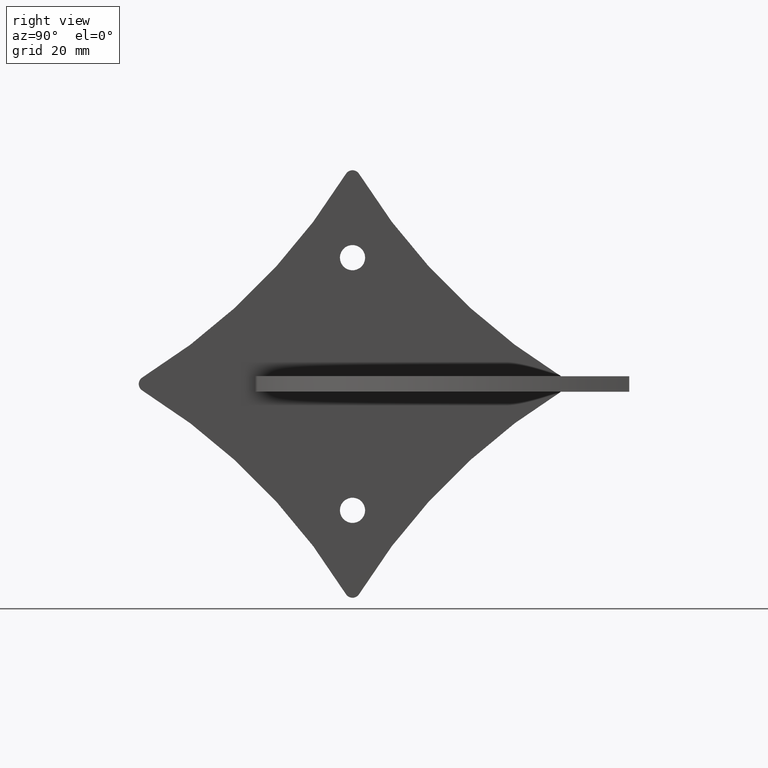
[diagram: clean part render]
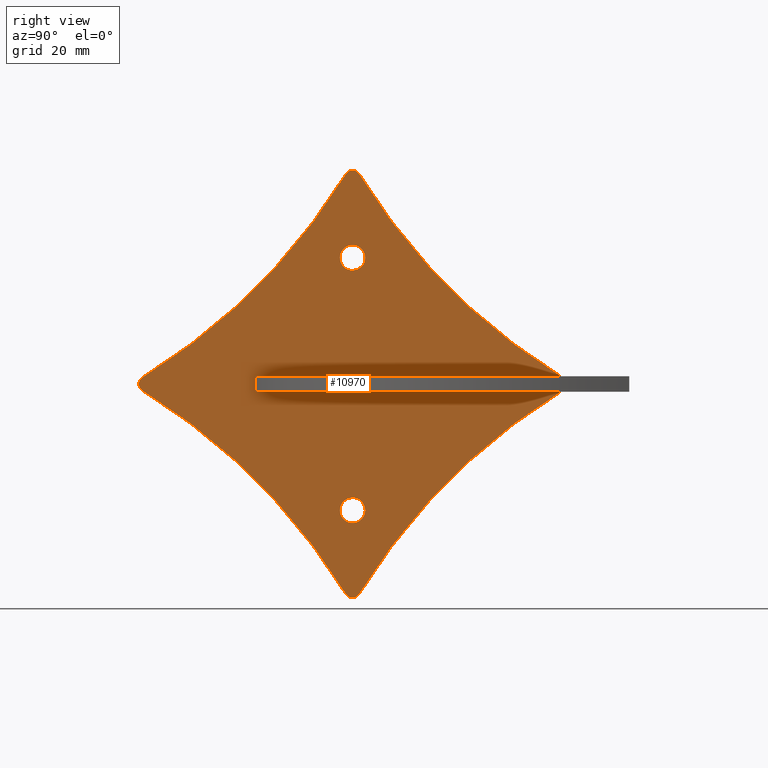
[diagram: same view with one face highlighted and labeled with its STEP entity id]
A machine part, right view. The second image highlights one B-rep face of the part: STEP entity #10970.
In plain terms, the highlighted planar face has unit normal (-1, 0, 0).
Its self-contained STEP definition (entity closure, byte-faithful):
#7 = CIRCLE ( 'NONE', #10721, 1.999999999999988010 ) ;
#24 = CARTESIAN_POINT ( 'NONE',  ( 1.998401444325281773E-12, 24.99999999999996803, -2.000000000000000000 ) ) ;
#71 = AXIS2_PLACEMENT_3D ( 'NONE', #9850, #10944, #13010 ) ;
#103 = CIRCLE ( 'NONE', #626, 3.250000000000000888 ) ;
#216 = ORIENTED_EDGE ( 'NONE', *, *, #7597, .T. ) ;
#340 = CIRCLE ( 'NONE', #12933, 3.250000000000000444 ) ;
#371 = VERTEX_POINT ( 'NONE', #3362 ) ;
#452 = CARTESIAN_POINT ( 'NONE',  ( 1.361320262357661371E-13, 1.703011507301621652, 54.04869051964736570 ) ) ;
#564 = VERTEX_POINT ( 'NONE', #9453 ) ;
#626 = AXIS2_PLACEMENT_3D ( 'NONE', #13065, #9814, #10858 ) ;
#666 = VERTEX_POINT ( 'NONE', #12627 ) ;
#815 = CARTESIAN_POINT ( 'NONE',  ( 1.998401444325281773E-12, 24.99999999999996803, 2.000000000000000000 ) ) ;
#844 = DIRECTION ( 'NONE',  ( -7.993605777301123305E-14, -1.000000000000000000, 0.000000000000000000 ) ) ;
#972 = LINE ( 'NONE', #1583, #5935 ) ;
#1106 = DIRECTION ( 'NONE',  ( 7.993605777301129615E-14, 1.000000000000000000, 0.000000000000000000 ) ) ;
#1193 = DIRECTION ( 'NONE',  ( 1.000000000000000000, -7.993605777301128353E-14, -0.000000000000000000 ) ) ;
#1250 = AXIS2_PLACEMENT_3D ( 'NONE', #7511, #1193, #1106 ) ;
#1334 = LINE ( 'NONE', #13193, #12055 ) ;
#1351 = PLANE ( 'NONE',  #5630 ) ;
#1398 = CARTESIAN_POINT ( 'NONE',  ( 4.236611061969595743E-12, 52.99999999999996447, 6.228573115277476685E-15 ) ) ;
#1568 = EDGE_LOOP ( 'NONE', ( #216, #5166 ) ) ;
#1583 = CARTESIAN_POINT ( 'NONE',  ( 2.220446049250313081E-13, -24.99999999999879918, 2.000000000000000000 ) ) ;
#1716 = DIRECTION ( 'NONE',  ( 1.000000000000000000, -7.993605777301128353E-14, -0.000000000000000000 ) ) ;
#1752 = EDGE_CURVE ( 'NONE', #6656, #5390, #3017, .T. ) ;
#1769 = VERTEX_POINT ( 'NONE', #13455 ) ;
#1807 = DIRECTION ( 'NONE',  ( -7.993605777301127091E-14, -1.000000000000000000, 0.000000000000000000 ) ) ;
#1852 = DIRECTION ( 'NONE',  ( -1.000000000000000000, 7.993605777301128353E-14, 0.000000000000000000 ) ) ;
#1877 = CARTESIAN_POINT ( 'NONE',  ( 1.102669412509716151E-11, 137.9439320914333393, 137.9439320914332825 ) ) ;
#1895 = CARTESIAN_POINT ( 'NONE',  ( -2.597921877622872363E-13, -3.250000000000006661, 32.50000000000000711 ) ) ;
#1917 = ORIENTED_EDGE ( 'NONE', *, *, #8962, .F. ) ;
#1933 = ORIENTED_EDGE ( 'NONE', *, *, #6199, .F. ) ;
#2263 = EDGE_LOOP ( 'NONE', ( #9836, #5785, #2656, #13405 ) ) ;
#2267 = VERTEX_POINT ( 'NONE', #8106 ) ;
#2300 = CARTESIAN_POINT ( 'NONE',  ( 2.597921877622855702E-13, 3.249999999999986233, -32.49999999999999289 ) ) ;
#2363 = CARTESIAN_POINT ( 'NONE',  ( -7.631652593533379434E-12, -95.47196604571666967, 68.97196604571664125 ) ) ;
#2495 = AXIS2_PLACEMENT_3D ( 'NONE', #11159, #3739, #6737 ) ;
#2496 = VECTOR ( 'NONE', #4426, 1000.000000000000000 ) ;
#2533 = EDGE_CURVE ( 'NONE', #666, #7802, #7329, .T. ) ;
#2591 = DIRECTION ( 'NONE',  ( 3.552713678800588651E-14, 1.000000000000000000, 0.000000000000000000 ) ) ;
#2595 = CARTESIAN_POINT ( 'NONE',  ( -2.597921877622878421E-13, -3.250000000000014211, -32.49999999999999289 ) ) ;
#2656 = ORIENTED_EDGE ( 'NONE', *, *, #3500, .F. ) ;
#2677 = DIRECTION ( 'NONE',  ( -7.993605777301127091E-14, -1.000000000000000000, 0.000000000000000000 ) ) ;
#2916 = DIRECTION ( 'NONE',  ( -7.993605777301128353E-14, -1.000000000000000000, 0.000000000000000000 ) ) ;
#3017 = CIRCLE ( 'NONE', #9191, 160.0000000000000284 ) ;
#3031 = CARTESIAN_POINT ( 'NONE',  ( 4.320439247934132664E-12, 54.04869051964728044, 1.703011507301644301 ) ) ;
#3268 = CIRCLE ( 'NONE', #9842, 1.999999999999992228 ) ;
#3343 = VERTEX_POINT ( 'NONE', #12800 ) ;
#3350 = EDGE_CURVE ( 'NONE', #5017, #2267, #103, .T. ) ;
#3362 = CARTESIAN_POINT ( 'NONE',  ( -1.998139615876600116E-12, -24.99999999999961986, 2.000000000000000000 ) ) ;
#3500 = EDGE_CURVE ( 'NONE', #11026, #7802, #1334, .T. ) ;
#3546 = DIRECTION ( 'NONE',  ( -1.000000000000000000, 7.993605777301128353E-14, 0.000000000000000000 ) ) ;
#3641 = CIRCLE ( 'NONE', #6390, 1.999999999999988010 ) ;
#3739 = DIRECTION ( 'NONE',  ( -1.000000000000000000, 7.993605777301128353E-14, 0.000000000000000000 ) ) ;
#3878 = EDGE_CURVE ( 'NONE', #12539, #8377, #3641, .T. ) ;
#3899 = CARTESIAN_POINT ( 'NONE',  ( -4.320439247934135088E-12, -54.04869051964730886, -1.703011507301593896 ) ) ;
#3976 = DIRECTION ( 'NONE',  ( -1.000000000000000000, 7.993605777301128353E-14, 0.000000000000000000 ) ) ;
#4426 = DIRECTION ( 'NONE',  ( 3.552713678800588651E-14, 1.000000000000000000, 0.000000000000000000 ) ) ;
#4624 = AXIS2_PLACEMENT_3D ( 'NONE', #13376, #10312, #2916 ) ;
#4678 = VERTEX_POINT ( 'NONE', #2595 ) ;
#4762 = DIRECTION ( 'NONE',  ( 1.000000000000000000, -7.993605777301128353E-14, -0.000000000000000000 ) ) ;
#4992 = CARTESIAN_POINT ( 'NONE',  ( -1.109335647967048031E-27, -1.387778780781445676E-14, -32.49999999999999289 ) ) ;
#5017 = VERTEX_POINT ( 'NONE', #1895 ) ;
#5083 = EDGE_CURVE ( 'NONE', #3343, #7432, #8588, .T. ) ;
#5166 = ORIENTED_EDGE ( 'NONE', *, *, #3350, .T. ) ;
#5185 = ORIENTED_EDGE ( 'NONE', *, *, #12350, .F. ) ;
#5390 = VERTEX_POINT ( 'NONE', #3899 ) ;
#5605 = DIRECTION ( 'NONE',  ( 7.993605777301123305E-14, 1.000000000000000000, 0.000000000000000000 ) ) ;
#5630 = AXIS2_PLACEMENT_3D ( 'NONE', #2363, #8736, #10938 ) ;
#5663 = ORIENTED_EDGE ( 'NONE', *, *, #5828, .F. ) ;
#5695 = DIRECTION ( 'NONE',  ( -1.000000000000000000, 7.993605777301128353E-14, 0.000000000000000000 ) ) ;
#5785 = ORIENTED_EDGE ( 'NONE', *, *, #2533, .T. ) ;
#5828 = EDGE_CURVE ( 'NONE', #7432, #6656, #3268, .T. ) ;
#5935 = VECTOR ( 'NONE', #11131, 1000.000000000000000 ) ;
#6109 = DIRECTION ( 'NONE',  ( -1.000000000000000000, 7.993605777301128353E-14, 0.000000000000000000 ) ) ;
#6174 = CARTESIAN_POINT ( 'NONE',  ( -1.361320262357708576E-13, -1.703011507301677163, -54.04869051964735149 ) ) ;
#6199 = EDGE_CURVE ( 'NONE', #564, #6596, #9388, .T. ) ;
#6307 = CARTESIAN_POINT ( 'NONE',  ( 1.361320262357657079E-13, 1.703011507301624983, -54.04869051964732307 ) ) ;
#6390 = AXIS2_PLACEMENT_3D ( 'NONE', #1398, #5695, #5605 ) ;
#6396 = ORIENTED_EDGE ( 'NONE', *, *, #3878, .F. ) ;
#6420 = ORIENTED_EDGE ( 'NONE', *, *, #11303, .T. ) ;
#6596 = VERTEX_POINT ( 'NONE', #452 ) ;
#6656 = VERTEX_POINT ( 'NONE', #6174 ) ;
#6737 = DIRECTION ( 'NONE',  ( -7.993605777301128353E-14, -1.000000000000000000, 0.000000000000000000 ) ) ;
#6764 = ORIENTED_EDGE ( 'NONE', *, *, #5083, .F. ) ;
#6836 = CARTESIAN_POINT ( 'NONE',  ( -1.102669412509716636E-11, -137.9439320914333962, -137.9439320914332257 ) ) ;
#6942 = FACE_BOUND ( 'NONE', #7291, .T. ) ;
#7033 = CARTESIAN_POINT ( 'NONE',  ( -1.693206494350487913E-27, -2.118201149171711369E-14, -53.00000000000001421 ) ) ;
#7250 = CIRCLE ( 'NONE', #12165, 160.0000000000000000 ) ;
#7291 = EDGE_LOOP ( 'NONE', ( #6420, #10848 ) ) ;
#7298 = AXIS2_PLACEMENT_3D ( 'NONE', #4992, #1852, #12446 ) ;
#7329 = LINE ( 'NONE', #815, #10794 ) ;
#7432 = VERTEX_POINT ( 'NONE', #6307 ) ;
#7511 = CARTESIAN_POINT ( 'NONE',  ( 1.102669412509715990E-11, 137.9439320914333109, -137.9439320914332825 ) ) ;
#7531 = ORIENTED_EDGE ( 'NONE', *, *, #9723, .F. ) ;
#7597 = EDGE_CURVE ( 'NONE', #2267, #5017, #8224, .T. ) ;
#7802 = VERTEX_POINT ( 'NONE', #24 ) ;
#7890 = CARTESIAN_POINT ( 'NONE',  ( 4.396483177515616669E-12, 54.99999999999995026, 6.228573115277476685E-15 ) ) ;
#7974 = CIRCLE ( 'NONE', #7298, 3.250000000000000444 ) ;
#8106 = CARTESIAN_POINT ( 'NONE',  ( 2.597921877622862266E-13, 3.249999999999994671, 32.50000000000000711 ) ) ;
#8112 = DIRECTION ( 'NONE',  ( 7.993605777301128353E-14, 1.000000000000000000, 0.000000000000000000 ) ) ;
#8224 = CIRCLE ( 'NONE', #4624, 3.250000000000000888 ) ;
#8377 = VERTEX_POINT ( 'NONE', #7890 ) ;
#8588 = CIRCLE ( 'NONE', #1250, 160.0000000000000000 ) ;
#8736 = DIRECTION ( 'NONE',  ( -1.000000000000000000, 7.993605777301128353E-14, 0.000000000000000000 ) ) ;
#8832 = CARTESIAN_POINT ( 'NONE',  ( -1.998401444325186453E-12, -24.99999999999879918, -2.000000000000000000 ) ) ;
#8903 = CIRCLE ( 'NONE', #71, 1.999999999999988010 ) ;
#8962 = EDGE_CURVE ( 'NONE', #5390, #1769, #7, .T. ) ;
#9191 = AXIS2_PLACEMENT_3D ( 'NONE', #6836, #4762, #2677 ) ;
#9210 = DIRECTION ( 'NONE',  ( -0.000000000000000000, -0.000000000000000000, -1.000000000000000000 ) ) ;
#9252 = EDGE_CURVE ( 'NONE', #371, #666, #13551, .T. ) ;
#9388 = CIRCLE ( 'NONE', #2495, 2.000000000000013767 ) ;
#9444 = EDGE_CURVE ( 'NONE', #4678, #12449, #7974, .T. ) ;
#9453 = CARTESIAN_POINT ( 'NONE',  ( -1.361320262357675507E-13, -1.703011507301648075, 54.04869051964733728 ) ) ;
#9591 = FACE_OUTER_BOUND ( 'NONE', #11037, .T. ) ;
#9685 = CARTESIAN_POINT ( 'NONE',  ( 1.110223024625135740E-12, -3.944304526105082560E-26, 2.000000000000000000 ) ) ;
#9723 = EDGE_CURVE ( 'NONE', #6596, #12539, #11910, .T. ) ;
#9745 = FACE_BOUND ( 'NONE', #1568, .T. ) ;
#9814 = DIRECTION ( 'NONE',  ( -1.000000000000000000, 7.993605777301128353E-14, 0.000000000000000000 ) ) ;
#9836 = ORIENTED_EDGE ( 'NONE', *, *, #9252, .T. ) ;
#9842 = AXIS2_PLACEMENT_3D ( 'NONE', #7033, #3976, #8112 ) ;
#9850 = CARTESIAN_POINT ( 'NONE',  ( 4.236611061969595743E-12, 52.99999999999996447, 6.228573115277476685E-15 ) ) ;
#10301 = CARTESIAN_POINT ( 'NONE',  ( -1.102669412509716313E-11, -137.9439320914333678, 137.9439320914332825 ) ) ;
#10312 = DIRECTION ( 'NONE',  ( -1.000000000000000000, 7.993605777301128353E-14, 0.000000000000000000 ) ) ;
#10360 = DIRECTION ( 'NONE',  ( 7.993605777301129615E-14, 1.000000000000000000, 0.000000000000000000 ) ) ;
#10721 = AXIS2_PLACEMENT_3D ( 'NONE', #12417, #6109, #844 ) ;
#10794 = VECTOR ( 'NONE', #9210, 1000.000000000000000 ) ;
#10848 = ORIENTED_EDGE ( 'NONE', *, *, #9444, .T. ) ;
#10858 = DIRECTION ( 'NONE',  ( -7.993605777301128353E-14, -1.000000000000000000, 0.000000000000000000 ) ) ;
#10916 = DIRECTION ( 'NONE',  ( -7.993605777301129615E-14, -1.000000000000000000, 0.000000000000000000 ) ) ;
#10938 = DIRECTION ( 'NONE',  ( -7.993605777301128353E-14, -1.000000000000000000, 0.000000000000000000 ) ) ;
#10944 = DIRECTION ( 'NONE',  ( -1.000000000000000000, 7.993605777301128353E-14, 0.000000000000000000 ) ) ;
#10970 = ADVANCED_FACE ( 'NONE', ( #12870, #9591, #9745, #6942 ), #1351, .F. ) ;
#11026 = VERTEX_POINT ( 'NONE', #8832 ) ;
#11037 = EDGE_LOOP ( 'NONE', ( #1917, #11795, #5663, #6764, #13525, #6396, #7531, #1933, #5185 ) ) ;
#11085 = AXIS2_PLACEMENT_3D ( 'NONE', #1877, #11513, #10360 ) ;
#11131 = DIRECTION ( 'NONE',  ( -0.000000000000000000, -0.000000000000000000, -1.000000000000000000 ) ) ;
#11159 = CARTESIAN_POINT ( 'NONE',  ( -1.094639335959678052E-28, -1.369393695981414631E-15, 52.99999999999998579 ) ) ;
#11303 = EDGE_CURVE ( 'NONE', #12449, #4678, #340, .T. ) ;
#11513 = DIRECTION ( 'NONE',  ( 1.000000000000000000, -7.993605777301128353E-14, -0.000000000000000000 ) ) ;
#11795 = ORIENTED_EDGE ( 'NONE', *, *, #1752, .F. ) ;
#11910 = CIRCLE ( 'NONE', #11085, 159.9999999999999716 ) ;
#12055 = VECTOR ( 'NONE', #2591, 1000.000000000000000 ) ;
#12165 = AXIS2_PLACEMENT_3D ( 'NONE', #10301, #1716, #1807 ) ;
#12350 = EDGE_CURVE ( 'NONE', #1769, #564, #7250, .T. ) ;
#12417 = CARTESIAN_POINT ( 'NONE',  ( -4.236611061969596550E-12, -52.99999999999997868, 1.920982918623941659E-14 ) ) ;
#12446 = DIRECTION ( 'NONE',  ( -7.993605777301129615E-14, -1.000000000000000000, 0.000000000000000000 ) ) ;
#12449 = VERTEX_POINT ( 'NONE', #2300 ) ;
#12539 = VERTEX_POINT ( 'NONE', #3031 ) ;
#12627 = CARTESIAN_POINT ( 'NONE',  ( 1.998587412948803633E-12, 24.99999999999992539, 2.000000000000000000 ) ) ;
#12800 = CARTESIAN_POINT ( 'NONE',  ( 4.320439247934134280E-12, 54.04869051964729465, -1.703011507301621652 ) ) ;
#12870 = FACE_BOUND ( 'NONE', #2263, .T. ) ;
#12933 = AXIS2_PLACEMENT_3D ( 'NONE', #12942, #3546, #10916 ) ;
#12942 = CARTESIAN_POINT ( 'NONE',  ( -1.109335647967048031E-27, -1.387778780781445676E-14, -32.49999999999999289 ) ) ;
#13010 = DIRECTION ( 'NONE',  ( 7.993605777301123305E-14, 1.000000000000000000, 0.000000000000000000 ) ) ;
#13065 = CARTESIAN_POINT ( 'NONE',  ( -4.730283055939027923E-28, -5.917583613356660292E-15, 32.50000000000000711 ) ) ;
#13193 = CARTESIAN_POINT ( 'NONE',  ( 1.110223024625135740E-12, -3.944304526105082560E-26, -2.000000000000000000 ) ) ;
#13376 = CARTESIAN_POINT ( 'NONE',  ( -4.730283055939027923E-28, -5.917583613356660292E-15, 32.50000000000000711 ) ) ;
#13405 = ORIENTED_EDGE ( 'NONE', *, *, #13565, .F. ) ;
#13455 = CARTESIAN_POINT ( 'NONE',  ( -4.320439247934125394E-12, -54.04869051964719517, 1.703011507301732674 ) ) ;
#13481 = EDGE_CURVE ( 'NONE', #8377, #3343, #8903, .T. ) ;
#13525 = ORIENTED_EDGE ( 'NONE', *, *, #13481, .F. ) ;
#13551 = LINE ( 'NONE', #9685, #2496 ) ;
#13565 = EDGE_CURVE ( 'NONE', #371, #11026, #972, .T. ) ;